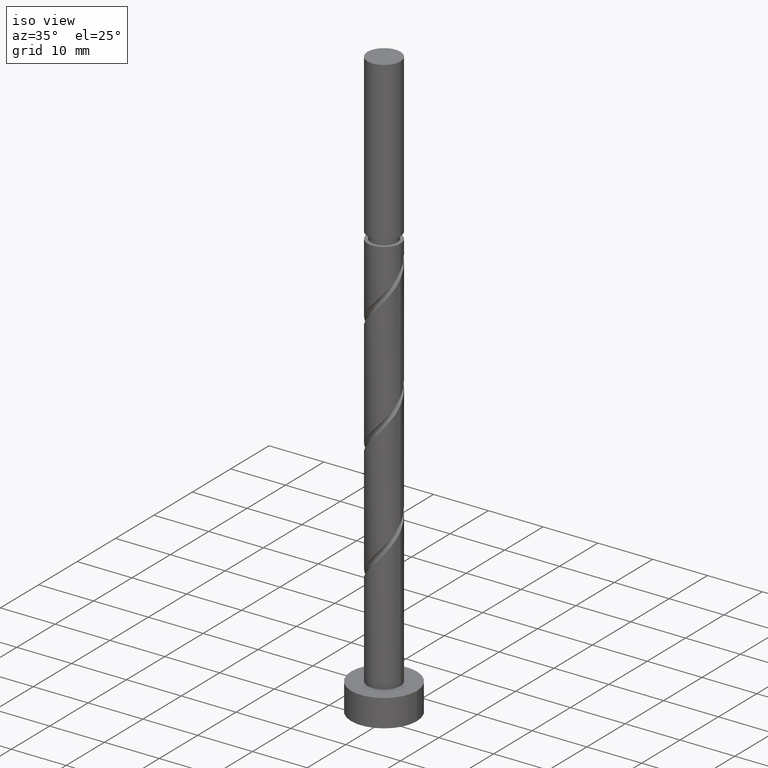
[diagram: clean part render]
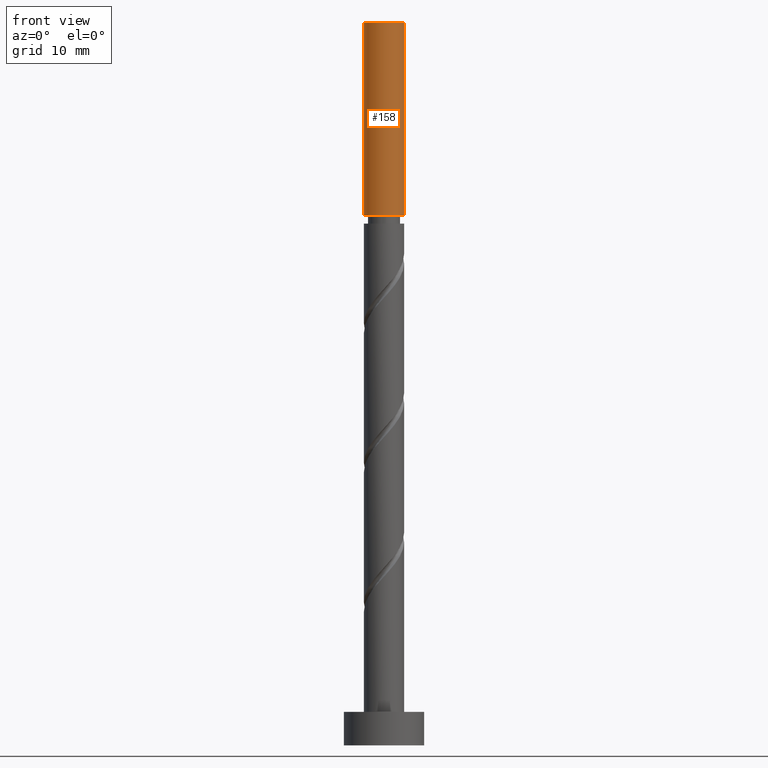
[diagram: tour spotlight — one face highlighted and labeled with its STEP entity id]
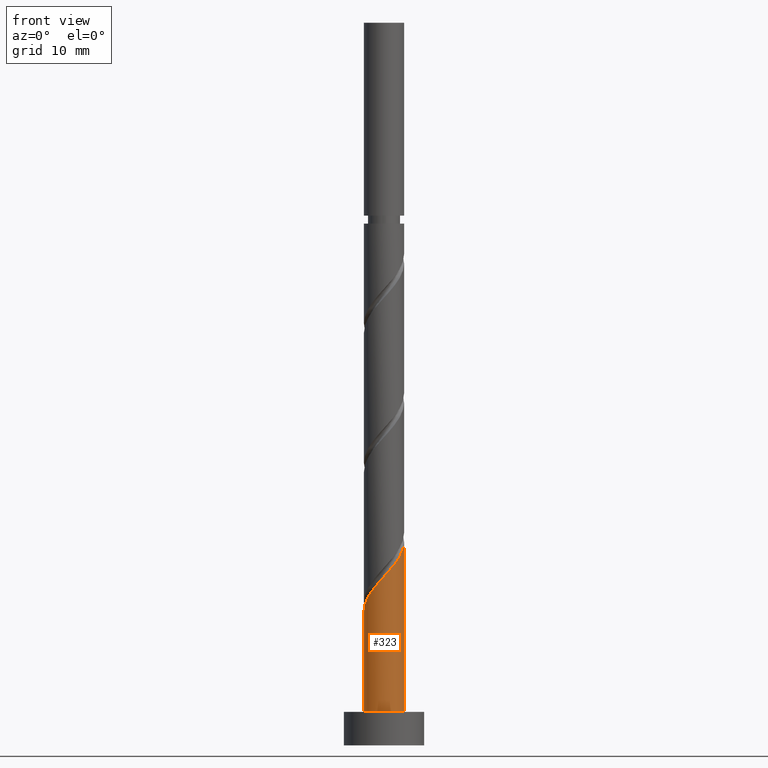
[diagram: tour spotlight — one face highlighted and labeled with its STEP entity id]
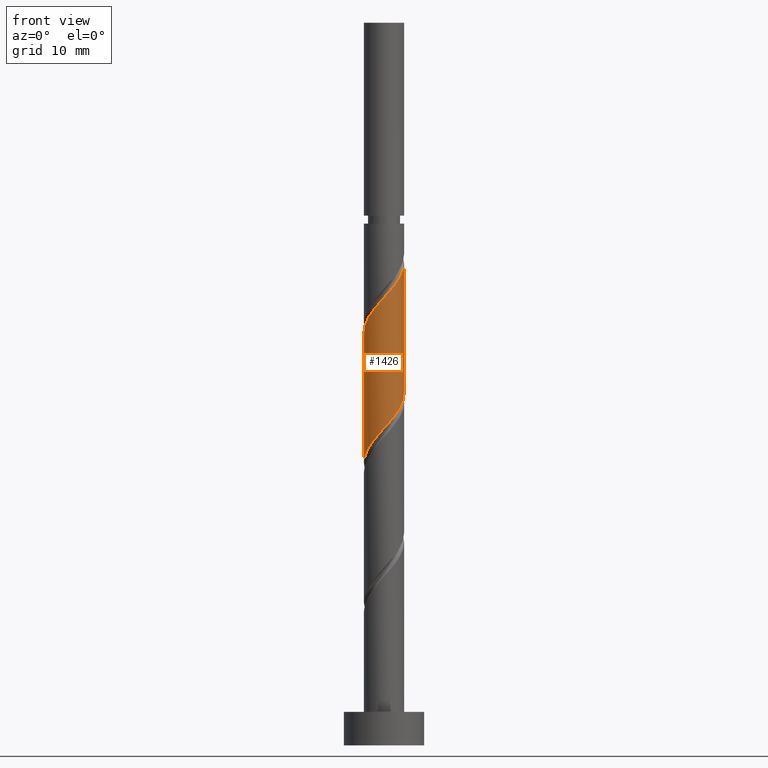
[diagram: tour spotlight — one face highlighted and labeled with its STEP entity id]
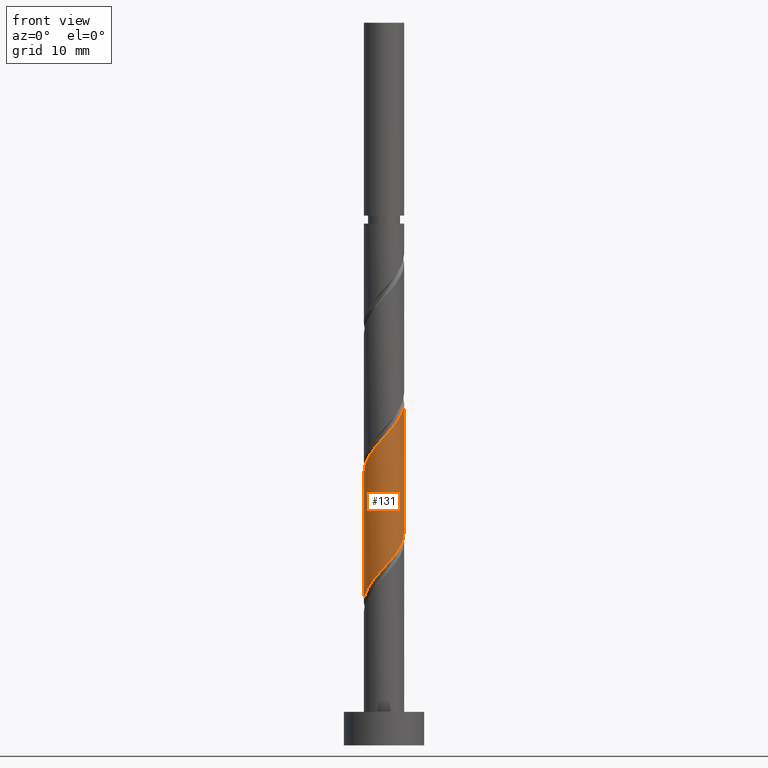
[diagram: tour spotlight — one face highlighted and labeled with its STEP entity id]
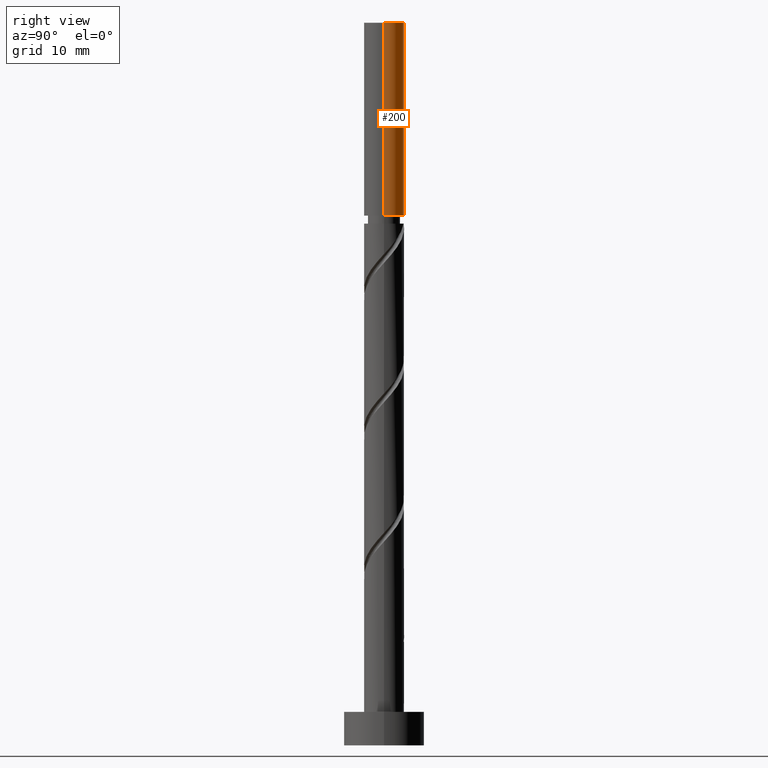
[diagram: tour spotlight — one face highlighted and labeled with its STEP entity id]
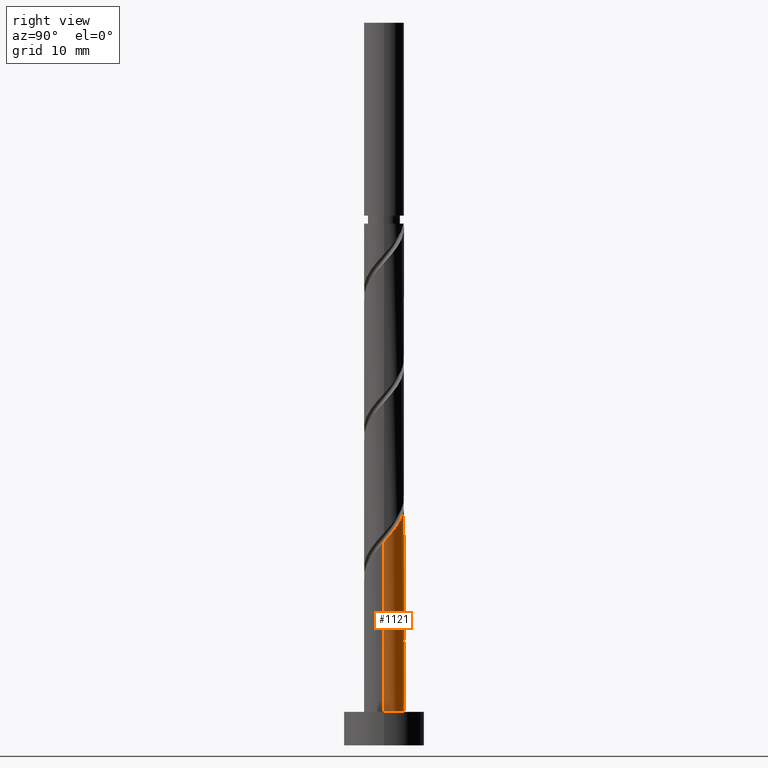
[diagram: tour spotlight — one face highlighted and labeled with its STEP entity id]
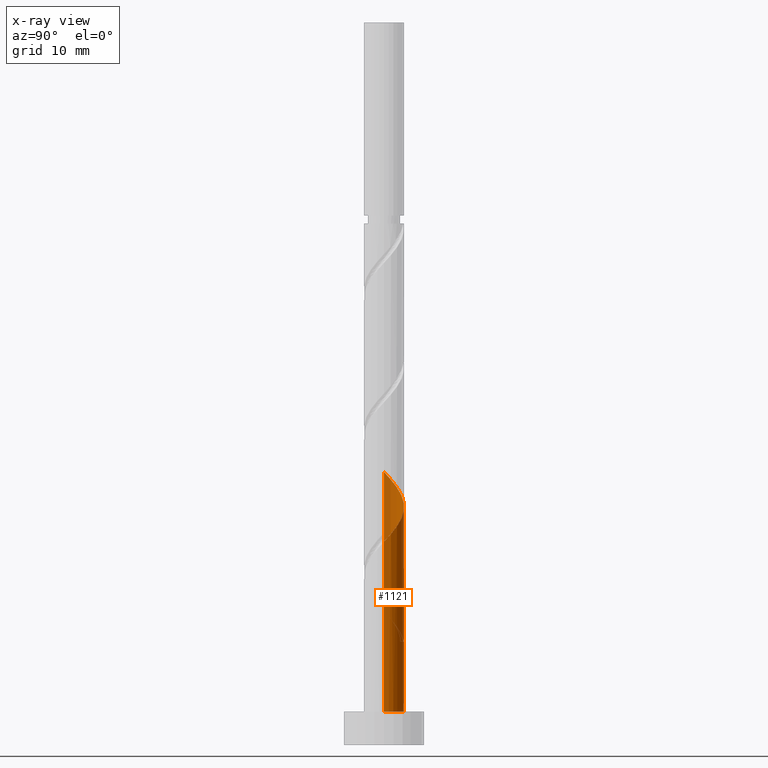
[diagram: x-ray of the same camera — body ghosted, this tour face saturated]
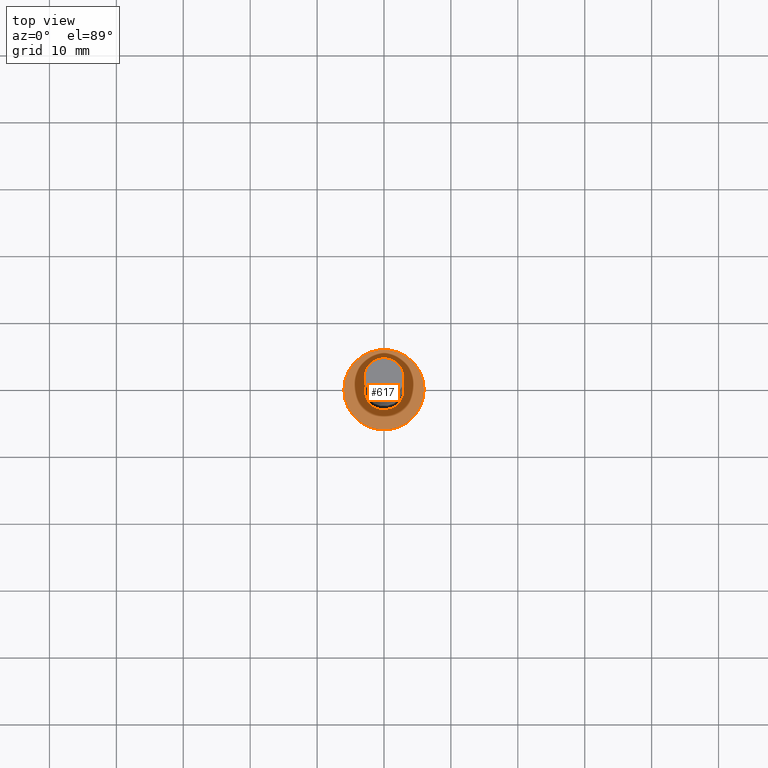
[diagram: tour spotlight — one face highlighted and labeled with its STEP entity id]
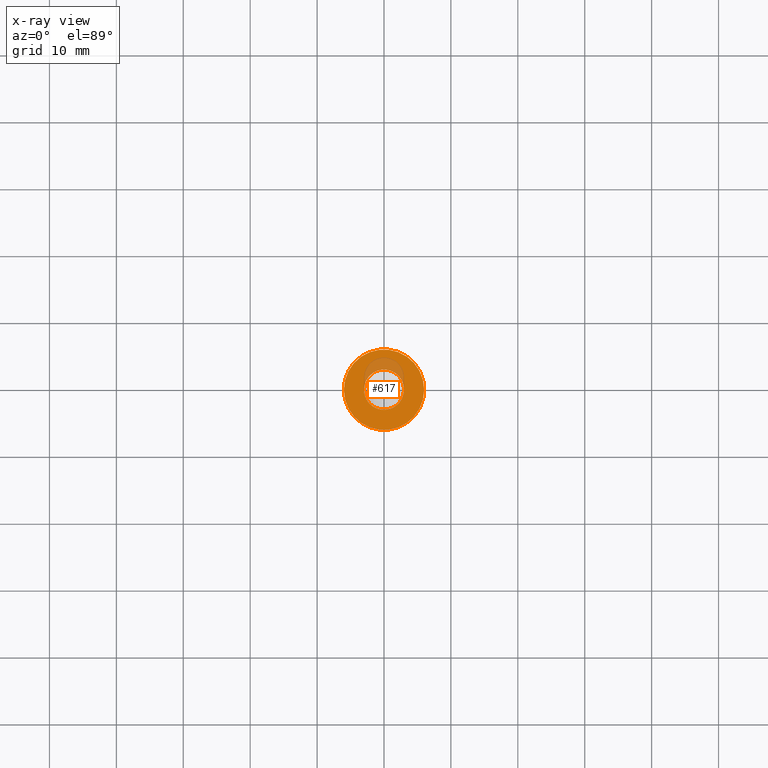
[diagram: x-ray of the same camera — body ghosted, this tour face saturated]
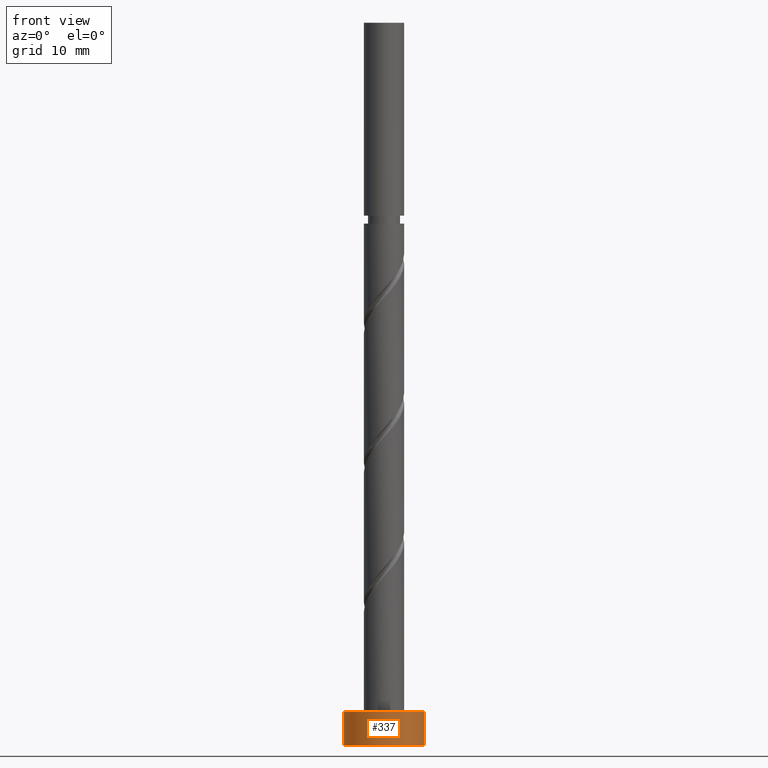
[diagram: tour spotlight — one face highlighted and labeled with its STEP entity id]
A machine part: a face-by-face anatomy tour. The part has 21 B-rep faces; the first image is the clean iso view, then the 8 largest visible faces are spotlighted one at a time (largest first), each with its STEP entity span.

Face 1 — front view, entity #158. In plain terms, the highlighted cylindrical surface (edge-blend (fillet) strip) has radius 3 mm, axis along (-0, -0, -1).
Definition (entity closure, byte-faithful):
#38 = DIRECTION ( 'NONE',  ( -0.000000000000000000, -0.000000000000000000, -1.000000000000000000 ) ) ;
#52 = CARTESIAN_POINT ( 'NONE',  ( 0.000000000000000000, 0.000000000000000000, 79.17256328937250487 ) ) ;
#77 = CARTESIAN_POINT ( 'NONE',  ( -3.000000000000003109, 0.000000000000000000, 79.17256328937250487 ) ) ;
#109 = EDGE_CURVE ( 'NONE', #1378, #461, #639, .T. ) ;
#134 = CARTESIAN_POINT ( 'NONE',  ( 3.000000000000003109, 3.673940397442063319E-16, 79.17256328937250487 ) ) ;
#136 = EDGE_LOOP ( 'NONE', ( #750, #1487, #1570, #478 ) ) ;
#158 = ADVANCED_FACE ( 'NONE', ( #190 ), #1178, .T. ) ;
#190 = FACE_OUTER_BOUND ( 'NONE', #136, .T. ) ;
#336 = AXIS2_PLACEMENT_3D ( 'NONE', #1388, #768, #1253 ) ;
#363 = CARTESIAN_POINT ( 'NONE',  ( 3.000000000000000444, 3.673940397442060361E-16, 108.0000000000000000 ) ) ;
#420 = DIRECTION ( 'NONE',  ( -1.000000000000000000, 0.000000000000000000, 0.000000000000000000 ) ) ;
#461 = VERTEX_POINT ( 'NONE', #134 ) ;
#478 = ORIENTED_EDGE ( 'NONE', *, *, #578, .F. ) ;
#565 = EDGE_CURVE ( 'NONE', #1233, #1378, #931, .T. ) ;
#578 = EDGE_CURVE ( 'NONE', #461, #1255, #1369, .T. ) ;
#602 = VECTOR ( 'NONE', #771, 1000.000000000000000 ) ;
#639 = LINE ( 'NONE', #1030, #810 ) ;
#750 = ORIENTED_EDGE ( 'NONE', *, *, #109, .F. ) ;
#768 = DIRECTION ( 'NONE',  ( 0.000000000000000000, 0.000000000000000000, 1.000000000000000000 ) ) ;
#771 = DIRECTION ( 'NONE',  ( -0.000000000000000000, -0.000000000000000000, -1.000000000000000000 ) ) ;
#789 = DIRECTION ( 'NONE',  ( -0.000000000000000000, -0.000000000000000000, -1.000000000000000000 ) ) ;
#810 = VECTOR ( 'NONE', #38, 1000.000000000000000 ) ;
#905 = LINE ( 'NONE', #1386, #602 ) ;
#931 = CIRCLE ( 'NONE', #336, 3.000000000000000444 ) ;
#949 = DIRECTION ( 'NONE',  ( -1.000000000000000000, 0.000000000000000000, 0.000000000000000000 ) ) ;
#1030 = CARTESIAN_POINT ( 'NONE',  ( 3.000000000000000444, 3.673940397442060361E-16, 108.0000000000000000 ) ) ;
#1060 = AXIS2_PLACEMENT_3D ( 'NONE', #52, #789, #420 ) ;
#1063 = CARTESIAN_POINT ( 'NONE',  ( 0.000000000000000000, 0.000000000000000000, 108.0000000000000000 ) ) ;
#1146 = EDGE_CURVE ( 'NONE', #1233, #1255, #905, .T. ) ;
#1178 = CYLINDRICAL_SURFACE ( 'NONE', #1400, 3.000000000000000444 ) ;
#1208 = DIRECTION ( 'NONE',  ( -0.000000000000000000, -0.000000000000000000, -1.000000000000000000 ) ) ;
#1233 = VERTEX_POINT ( 'NONE', #1312 ) ;
#1253 = DIRECTION ( 'NONE',  ( 1.000000000000000000, 0.000000000000000000, 0.000000000000000000 ) ) ;
#1255 = VERTEX_POINT ( 'NONE', #77 ) ;
#1312 = CARTESIAN_POINT ( 'NONE',  ( -3.000000000000000444, 0.000000000000000000, 108.0000000000000000 ) ) ;
#1369 = CIRCLE ( 'NONE', #1060, 3.000000000000003109 ) ;
#1378 = VERTEX_POINT ( 'NONE', #363 ) ;
#1386 = CARTESIAN_POINT ( 'NONE',  ( -3.000000000000000444, 0.000000000000000000, 108.0000000000000000 ) ) ;
#1388 = CARTESIAN_POINT ( 'NONE',  ( 0.000000000000000000, 0.000000000000000000, 108.0000000000000000 ) ) ;
#1400 = AXIS2_PLACEMENT_3D ( 'NONE', #1063, #1208, #949 ) ;
#1487 = ORIENTED_EDGE ( 'NONE', *, *, #565, .F. ) ;
#1570 = ORIENTED_EDGE ( 'NONE', *, *, #1146, .T. ) ;

Face 2 — front view, entity #323. In plain terms, the highlighted cylindrical surface (edge-blend (fillet) strip) has radius 3 mm, axis along (-0, -0, -1).
Definition (entity closure, byte-faithful):
#19 = ORIENTED_EDGE ( 'NONE', *, *, #1438, .T. ) ;
#83 = CARTESIAN_POINT ( 'NONE',  ( 3.000000000000004441, 2.129020595215229578E-15, 30.43276084790224090 ) ) ;
#91 = CARTESIAN_POINT ( 'NONE',  ( 0.000000000000000000, 0.000000000000000000, 5.000000000000000000 ) ) ;
#110 = FACE_OUTER_BOUND ( 'NONE', #1449, .T. ) ;
#193 = CARTESIAN_POINT ( 'NONE',  ( -1.677408196705101107, -2.532207025513280918, 23.28506328937249137 ) ) ;
#217 = CARTESIAN_POINT ( 'NONE',  ( 1.889924352937062180, -2.377805000122529933, 27.45172995603916277 ) ) ;
#224 = DIRECTION ( 'NONE',  ( 0.000000000000000000, 0.000000000000000000, 1.000000000000000000 ) ) ;
#294 = CIRCLE ( 'NONE', #1077, 3.000000000000000444 ) ;
#323 = ADVANCED_FACE ( 'NONE', ( #110 ), #458, .T. ) ;
#351 = AXIS2_PLACEMENT_3D ( 'NONE', #1083, #681, #806 ) ;
#356 = CARTESIAN_POINT ( 'NONE',  ( 3.000000000000000444, 3.673940397442060361E-16, 108.0000000000000000 ) ) ;
#360 = DIRECTION ( 'NONE',  ( -0.000000000000000000, -0.000000000000000000, -1.000000000000000000 ) ) ;
#405 = EDGE_CURVE ( 'NONE', #1202, #1457, #294, .T. ) ;
#450 = CARTESIAN_POINT ( 'NONE',  ( -2.611625341554443924, -1.476283534877586012, 21.72256328937249492 ) ) ;
#458 = CYLINDRICAL_SURFACE ( 'NONE', #351, 3.000000000000000444 ) ;
#469 = CARTESIAN_POINT ( 'NONE',  ( 1.062642716818109401, -2.845445682986358804, 26.41006328937249492 ) ) ;
#475 = DIRECTION ( 'NONE',  ( 1.000000000000000000, 0.000000000000000000, 0.000000000000000000 ) ) ;
#558 = VECTOR ( 'NONE', #360, 1000.000000000000000 ) ;
#564 = CARTESIAN_POINT ( 'NONE',  ( -3.000000000000004441, -2.533834370361787387E-15, 20.01609418123556594 ) ) ;
#583 = CARTESIAN_POINT ( 'NONE',  ( 1.476283534877586012, -2.611625341554443924, 26.93089662270582707 ) ) ;
#681 = DIRECTION ( 'NONE',  ( -0.000000000000000000, -0.000000000000000000, -1.000000000000000000 ) ) ;
#683 = CARTESIAN_POINT ( 'NONE',  ( 2.980586974261068001, -0.3407363920471078167, 30.05589662270583062 ) ) ;
#691 = CARTESIAN_POINT ( 'NONE',  ( 2.729413328510883474, -1.245111594254576071, 29.01422995603915567 ) ) ;
#743 = VERTEX_POINT ( 'NONE', #1444 ) ;
#755 = LINE ( 'NONE', #356, #895 ) ;
#802 = CARTESIAN_POINT ( 'NONE',  ( -0.3407363920471075391, -2.980586974261068001, 24.84756328937249492 ) ) ;
#806 = DIRECTION ( 'NONE',  ( -1.000000000000000000, 0.000000000000000000, 0.000000000000000000 ) ) ;
#808 = CARTESIAN_POINT ( 'NONE',  ( 2.532207025513280918, -1.677408196705101773, 28.49339662270582707 ) ) ;
#828 = CARTESIAN_POINT ( 'NONE',  ( 0.5969924622639719569, -2.940000000000004388, 25.88922995603915211 ) ) ;
#837 = CARTESIAN_POINT ( 'NONE',  ( -2.027606598413815409, -2.211065689225171216, 22.76422995603915922 ) ) ;
#851 = DIRECTION ( 'NONE',  ( -0.000000000000000000, -0.000000000000000000, -1.000000000000000000 ) ) ;
#852 = ORIENTED_EDGE ( 'NONE', *, *, #405, .T. ) ;
#865 = CARTESIAN_POINT ( 'NONE',  ( 3.000000000000000444, 3.673940397442060361E-16, 5.000000000000000000 ) ) ;
#895 = VECTOR ( 'NONE', #851, 1000.000000000000000 ) ;
#928 = CARTESIAN_POINT ( 'NONE',  ( 3.000000000000004441, 2.129020595215229578E-15, 30.43276084790224090 ) ) ;
#1056 = CARTESIAN_POINT ( 'NONE',  ( -1.245111594254576071, -2.729413328510883474, 23.80589662270581996 ) ) ;
#1075 = CARTESIAN_POINT ( 'NONE',  ( -2.377805000122529933, -1.889924352937062402, 22.24339662270583418 ) ) ;
#1077 = AXIS2_PLACEMENT_3D ( 'NONE', #91, #224, #475 ) ;
#1083 = CARTESIAN_POINT ( 'NONE',  ( 0.000000000000000000, 0.000000000000000000, 108.0000000000000000 ) ) ;
#1111 = ORIENTED_EDGE ( 'NONE', *, *, #1407, .F. ) ;
#1118 = VERTEX_POINT ( 'NONE', #928 ) ;
#1160 = CARTESIAN_POINT ( 'NONE',  ( -3.000000000000000444, 0.000000000000000000, 5.000000000000000000 ) ) ;
#1173 = CARTESIAN_POINT ( 'NONE',  ( 2.926619631508485142, -0.8128149918040498134, 29.53506328937248782 ) ) ;
#1181 = CARTESIAN_POINT ( 'NONE',  ( -2.845445682986358804, -1.062642716818109401, 21.20172995603915922 ) ) ;
#1202 = VERTEX_POINT ( 'NONE', #1160 ) ;
#1210 = CARTESIAN_POINT ( 'NONE',  ( -0.8128149918040497024, -2.926619631508485142, 24.32672995603915922 ) ) ;
#1225 = ORIENTED_EDGE ( 'NONE', *, *, #1290, .F. ) ;
#1290 = EDGE_CURVE ( 'NONE', #743, #1118, #1538, .T. ) ;
#1295 = CARTESIAN_POINT ( 'NONE',  ( 0.1313422077098344298, -3.034554317013650859, 25.36839662270582352 ) ) ;
#1304 = CARTESIAN_POINT ( 'NONE',  ( -2.940000000000004388, -0.5969924622639721790, 20.68089662270581996 ) ) ;
#1320 = CARTESIAN_POINT ( 'NONE',  ( 2.211065689225171216, -2.027606598413815409, 27.97256328937249137 ) ) ;
#1407 = EDGE_CURVE ( 'NONE', #1118, #1457, #755, .T. ) ;
#1438 = EDGE_CURVE ( 'NONE', #743, #1202, #1574, .T. ) ;
#1444 = CARTESIAN_POINT ( 'NONE',  ( -3.000000000000004441, -2.533834370361787387E-15, 20.01609418123556594 ) ) ;
#1447 = CARTESIAN_POINT ( 'NONE',  ( -3.000000000000004885, -0.3015113445777645174, 20.35039875664340769 ) ) ;
#1449 = EDGE_LOOP ( 'NONE', ( #1111, #1225, #19, #852 ) ) ;
#1457 = VERTEX_POINT ( 'NONE', #865 ) ;
#1463 = CARTESIAN_POINT ( 'NONE',  ( -3.000000000000000444, 0.000000000000000000, 108.0000000000000000 ) ) ;
#1538 =( BOUNDED_CURVE ( )  B_SPLINE_CURVE ( 2, ( #564, #1447, #1304, #1181, #450, #1075, #837, #193, #1056, #1210, #802, #1295, #828, #469, #583, #217, #1320, #808, #691, #1173, #683, #1542, #83 ),
 .UNSPECIFIED., .F., .T. ) 
 B_SPLINE_CURVE_WITH_KNOTS ( ( 3, 2, 2, 2, 2, 2, 2, 2, 2, 2, 2, 3 ),
 ( 0.05453220231385523531, 0.06250000000000000000, 0.07499999999999995559, 0.08750000000000002220, 0.09999999999999997780, 0.1125000000000000444, 0.1250000000000000000, 0.1374999999999999556, 0.1500000000000000222, 0.1624999999999999778, 0.1750000000000000444, 0.1795322023138552214 ),
 .UNSPECIFIED. ) 
 CURVE ( )  GEOMETRIC_REPRESENTATION_ITEM ( )  RATIONAL_B_SPLINE_CURVE ( ( 0.9039174447099327381, 0.9019565955404622581, 0.9090909090909106149, 0.8978984914501266790, 0.9090909090909106149, 0.8978984914501266790, 0.9090909090909106149, 0.8978984914501266790, 0.9090909090909106149, 0.8978984914501266790, 0.9090909090909106149, 0.8978984914501266790, 0.9090909090909106149, 0.8978984914501266790, 0.9090909090909106149, 0.8978984914501266790, 0.9090909090909106149, 0.8978984914501266790, 0.9090909090909106149, 0.8978984914501266790, 0.9090909090909106149, 0.9050328050005750358, 0.9039174447099328491 ) ) 
 REPRESENTATION_ITEM ( '' )  );
#1542 = CARTESIAN_POINT ( 'NONE',  ( 3.000000000000004441, -0.1709212123392994109, 30.24324975869495447 ) ) ;
#1574 = LINE ( 'NONE', #1463, #558 ) ;

Face 3 — front view, entity #1426. In plain terms, the highlighted cylindrical surface (edge-blend (fillet) strip) has radius 3 mm, axis along (-0, -0, -1).
Definition (entity closure, byte-faithful):
#63 = ORIENTED_EDGE ( 'NONE', *, *, #1027, .T. ) ;
#70 = CARTESIAN_POINT ( 'NONE',  ( -2.729413328510879033, -1.245111594254573184, 43.59756328937248071 ) ) ;
#87 = CARTESIAN_POINT ( 'NONE',  ( 1.677408196705098442, -2.532207025513278253, 49.32672995603918054 ) ) ;
#99 = CARTESIAN_POINT ( 'NONE',  ( -3.000000000000000000, 3.373448126221336110E-15, 42.17903239750943101 ) ) ;
#102 = CARTESIAN_POINT ( 'NONE',  ( 2.532207025513280918, -1.677408196705101773, 70.16006328937250203 ) ) ;
#112 = CARTESIAN_POINT ( 'NONE',  ( -2.845445682986358804, -1.062642716818109401, 62.86839662270582352 ) ) ;
#148 = CARTESIAN_POINT ( 'NONE',  ( 0.3407363920471058738, -2.980586974261063116, 47.76422995603915922 ) ) ;
#152 = ORIENTED_EDGE ( 'NONE', *, *, #283, .F. ) ;
#167 = CARTESIAN_POINT ( 'NONE',  ( -3.000000000000000000, 3.373448126221336110E-15, 42.17903239750943101 ) ) ;
#197 = AXIS2_PLACEMENT_3D ( 'NONE', #884, #528, #280 ) ;
#227 = CARTESIAN_POINT ( 'NONE',  ( 2.926619631508485142, -0.8128149918040498134, 71.20172995603917343 ) ) ;
#230 = CARTESIAN_POINT ( 'NONE',  ( 3.000000000000000000, -3.703296387451867164E-15, 52.59569906417608109 ) ) ;
#238 = CARTESIAN_POINT ( 'NONE',  ( 2.377805000122526824, -1.889924352937060847, 50.36839662270583773 ) ) ;
#280 = DIRECTION ( 'NONE',  ( -1.000000000000000000, 0.000000000000000000, 0.000000000000000000 ) ) ;
#283 = EDGE_CURVE ( 'NONE', #860, #1553, #1054, .T. ) ;
#315 = CARTESIAN_POINT ( 'NONE',  ( 3.000000000000000444, 3.673940397442060361E-16, 108.0000000000000000 ) ) ;
#318 = ORIENTED_EDGE ( 'NONE', *, *, #1112, .F. ) ;
#326 = CARTESIAN_POINT ( 'NONE',  ( -1.245111594254576071, -2.729413328510883474, 65.47256328937250203 ) ) ;
#334 = CARTESIAN_POINT ( 'NONE',  ( 1.889924352937062180, -2.377805000122529933, 69.11839662270583062 ) ) ;
#345 = CARTESIAN_POINT ( 'NONE',  ( -2.377805000122529933, -1.889924352937062402, 63.91006328937246650 ) ) ;
#364 = EDGE_LOOP ( 'NONE', ( #152, #1467, #63, #318 ) ) ;
#365 = CARTESIAN_POINT ( 'NONE',  ( -1.476283534877585124, -2.611625341554439483, 45.68089662270583062 ) ) ;
#433 = CARTESIAN_POINT ( 'NONE',  ( -1.889924352937060847, -2.377805000122526824, 45.16006328937250203 ) ) ;
#519 = CARTESIAN_POINT ( 'NONE',  ( -0.1313422077098356233, -3.034554317013646862, 47.24339662270581641 ) ) ;
#528 = DIRECTION ( 'NONE',  ( -0.000000000000000000, -0.000000000000000000, -1.000000000000000000 ) ) ;
#543 = VECTOR ( 'NONE', #831, 1000.000000000000000 ) ;
#552 =( BOUNDED_CURVE ( )  B_SPLINE_CURVE ( 2, ( #935, #1419, #573, #112, #1065, #345, #1429, #943, #326, #820, #1331, #699, #1552, #951, #1439, #334, #1201, #102, #592, #227, #1085, #1561, #718 ),
 .UNSPECIFIED., .F., .T. ) 
 B_SPLINE_CURVE_WITH_KNOTS ( ( 3, 2, 2, 2, 2, 2, 2, 2, 2, 2, 2, 3 ),
 ( 0.5545322023138553602, 0.5625000000000000000, 0.5749999999999999556, 0.5875000000000000222, 0.5999999999999999778, 0.6125000000000000444, 0.6250000000000000000, 0.6374999999999999556, 0.6500000000000000222, 0.6624999999999999778, 0.6750000000000000444, 0.6795322023138553602 ),
 .UNSPECIFIED. ) 
 CURVE ( )  GEOMETRIC_REPRESENTATION_ITEM ( )  RATIONAL_B_SPLINE_CURVE ( ( 0.9039174447099328491, 0.9019565955404623692, 0.9090909090909106149, 0.8978984914501266790, 0.9090909090909106149, 0.8978984914501266790, 0.9090909090909106149, 0.8978984914501266790, 0.9090909090909106149, 0.8978984914501266790, 0.9090909090909106149, 0.8978984914501266790, 0.9090909090909106149, 0.8978984914501266790, 0.9090909090909106149, 0.8978984914501266790, 0.9090909090909106149, 0.8978984914501266790, 0.9090909090909106149, 0.8978984914501266790, 0.9090909090909106149, 0.9050328050005749247, 0.9039174447099328491 ) ) 
 REPRESENTATION_ITEM ( '' )  );
#566 = CARTESIAN_POINT ( 'NONE',  ( 2.027606598413811856, -2.211065689225169439, 49.84756328937248782 ) ) ;
#573 = CARTESIAN_POINT ( 'NONE',  ( -2.940000000000004388, -0.5969924622639721790, 62.34756328937248071 ) ) ;
#576 = CARTESIAN_POINT ( 'NONE',  ( 1.245111594254573184, -2.729413328510879033, 48.80589662270582352 ) ) ;
#592 = CARTESIAN_POINT ( 'NONE',  ( 2.729413328510883474, -1.245111594254576071, 70.68089662270580220 ) ) ;
#594 = CARTESIAN_POINT ( 'NONE',  ( -3.000000000000000444, 0.000000000000000000, 108.0000000000000000 ) ) ;
#641 = CARTESIAN_POINT ( 'NONE',  ( 3.000000000000000000, -3.703296387451867164E-15, 52.59569906417608109 ) ) ;
#666 = CARTESIAN_POINT ( 'NONE',  ( -2.926619631508482477, -0.8128149918040481481, 43.07672995603917343 ) ) ;
#699 = CARTESIAN_POINT ( 'NONE',  ( 0.1313422077098344298, -3.034554317013650859, 67.03506328937248782 ) ) ;
#710 = CARTESIAN_POINT ( 'NONE',  ( 3.000000000000000444, -0.3015113445777657386, 52.26139448876826776 ) ) ;
#718 = CARTESIAN_POINT ( 'NONE',  ( 3.000000000000004885, 5.847310085450277599E-16, 72.09942751456891585 ) ) ;
#793 = CARTESIAN_POINT ( 'NONE',  ( -2.980586974261063116, -0.3407363920471060958, 42.55589662270583062 ) ) ;
#820 = CARTESIAN_POINT ( 'NONE',  ( -0.8128149918040497024, -2.926619631508485142, 65.99339662270584483 ) ) ;
#831 = DIRECTION ( 'NONE',  ( -0.000000000000000000, -0.000000000000000000, -1.000000000000000000 ) ) ;
#847 = CARTESIAN_POINT ( 'NONE',  ( 2.845445682986354363, -1.062642716818109401, 51.41006328937249492 ) ) ;
#860 = VERTEX_POINT ( 'NONE', #1554 ) ;
#880 = CARTESIAN_POINT ( 'NONE',  ( 0.8128149918040478150, -2.926619631508482477, 48.28506328937251624 ) ) ;
#884 = CARTESIAN_POINT ( 'NONE',  ( 0.000000000000000000, 0.000000000000000000, 108.0000000000000000 ) ) ;
#888 = CARTESIAN_POINT ( 'NONE',  ( -1.062642716818109179, -2.845445682986354363, 46.20172995603915922 ) ) ;
#918 = CYLINDRICAL_SURFACE ( 'NONE', #197, 3.000000000000000444 ) ;
#921 = CARTESIAN_POINT ( 'NONE',  ( -3.000000000000000444, -0.1709212123392969129, 42.36854348671670323 ) ) ;
#935 = CARTESIAN_POINT ( 'NONE',  ( -3.000000000000004885, -9.895447836915852730E-16, 61.68276084790223024 ) ) ;
#943 = CARTESIAN_POINT ( 'NONE',  ( -1.677408196705101107, -2.532207025513280918, 64.95172995603915922 ) ) ;
#944 = VERTEX_POINT ( 'NONE', #1218 ) ;
#951 = CARTESIAN_POINT ( 'NONE',  ( 1.062642716818109401, -2.845445682986358804, 68.07672995603917343 ) ) ;
#997 =( BOUNDED_CURVE ( )  B_SPLINE_CURVE ( 2, ( #230, #710, #1203, #847, #1340, #238, #566, #87, #576, #880, #148, #519, #1494, #888, #365, #433, #1033, #1287, #70, #666, #793, #921, #167 ),
 .UNSPECIFIED., .F., .T. ) 
 B_SPLINE_CURVE_WITH_KNOTS ( ( 3, 2, 2, 2, 2, 2, 2, 2, 2, 2, 2, 3 ),
 ( 0.5545322023138552492, 0.5625000000000000000, 0.5749999999999999556, 0.5875000000000000222, 0.5999999999999999778, 0.6125000000000000444, 0.6250000000000000000, 0.6374999999999999556, 0.6500000000000000222, 0.6624999999999999778, 0.6750000000000000444, 0.6795322023138552492 ),
 .UNSPECIFIED. ) 
 CURVE ( )  GEOMETRIC_REPRESENTATION_ITEM ( )  RATIONAL_B_SPLINE_CURVE ( ( 0.9039174447099269649, 0.9019565955404564850, 0.9090909090909048418, 0.8978984914501209058, 0.9090909090909048418, 0.8978984914501209058, 0.9090909090909048418, 0.8978984914501209058, 0.9090909090909048418, 0.8978984914501209058, 0.9090909090909048418, 0.8978984914501209058, 0.9090909090909048418, 0.8978984914501209058, 0.9090909090909048418, 0.8978984914501209058, 0.9090909090909048418, 0.8978984914501209058, 0.9090909090909048418, 0.8978984914501209058, 0.9090909090909048418, 0.9050328050005691516, 0.9039174447099269649 ) ) 
 REPRESENTATION_ITEM ( '' )  );
#1027 = EDGE_CURVE ( 'NONE', #944, #1521, #1459, .T. ) ;
#1033 = CARTESIAN_POINT ( 'NONE',  ( -2.211065689225169439, -2.027606598413811856, 44.63922995603915211 ) ) ;
#1054 = LINE ( 'NONE', #315, #1330 ) ;
#1065 = CARTESIAN_POINT ( 'NONE',  ( -2.611625341554443924, -1.476283534877586012, 63.38922995603915922 ) ) ;
#1085 = CARTESIAN_POINT ( 'NONE',  ( 2.980586974261068001, -0.3407363920471078167, 71.72256328937247360 ) ) ;
#1112 = EDGE_CURVE ( 'NONE', #1553, #1521, #997, .T. ) ;
#1189 = DIRECTION ( 'NONE',  ( -0.000000000000000000, -0.000000000000000000, -1.000000000000000000 ) ) ;
#1201 = CARTESIAN_POINT ( 'NONE',  ( 2.211065689225171216, -2.027606598413815409, 69.63922995603914501 ) ) ;
#1203 = CARTESIAN_POINT ( 'NONE',  ( 2.940000000000000835, -0.5969924622639726230, 51.93089662270581641 ) ) ;
#1218 = CARTESIAN_POINT ( 'NONE',  ( -3.000000000000004885, -9.895447836915852730E-16, 61.68276084790223024 ) ) ;
#1287 = CARTESIAN_POINT ( 'NONE',  ( -2.532207025513277809, -1.677408196705098442, 44.11839662270584483 ) ) ;
#1322 = EDGE_CURVE ( 'NONE', #944, #860, #552, .T. ) ;
#1330 = VECTOR ( 'NONE', #1189, 1000.000000000000000 ) ;
#1331 = CARTESIAN_POINT ( 'NONE',  ( -0.3407363920471075391, -2.980586974261068001, 66.51422995603914501 ) ) ;
#1340 = CARTESIAN_POINT ( 'NONE',  ( 2.611625341554439483, -1.476283534877585346, 50.88922995603914501 ) ) ;
#1362 = FACE_OUTER_BOUND ( 'NONE', #364, .T. ) ;
#1419 = CARTESIAN_POINT ( 'NONE',  ( -3.000000000000003109, -0.3015113445777691248, 62.01706542331007910 ) ) ;
#1426 = ADVANCED_FACE ( 'NONE', ( #1362 ), #918, .T. ) ;
#1429 = CARTESIAN_POINT ( 'NONE',  ( -2.027606598413815409, -2.211065689225171216, 64.43089662270581641 ) ) ;
#1439 = CARTESIAN_POINT ( 'NONE',  ( 1.476283534877586012, -2.611625341554443924, 68.59756328937248782 ) ) ;
#1459 = LINE ( 'NONE', #594, #543 ) ;
#1467 = ORIENTED_EDGE ( 'NONE', *, *, #1322, .F. ) ;
#1494 = CARTESIAN_POINT ( 'NONE',  ( -0.5969924622639722900, -2.940000000000000835, 46.72256328937248782 ) ) ;
#1521 = VERTEX_POINT ( 'NONE', #99 ) ;
#1552 = CARTESIAN_POINT ( 'NONE',  ( 0.5969924622639719569, -2.940000000000004388, 67.55589662270581641 ) ) ;
#1553 = VERTEX_POINT ( 'NONE', #641 ) ;
#1554 = CARTESIAN_POINT ( 'NONE',  ( 3.000000000000004885, 5.847310085450277599E-16, 72.09942751456891585 ) ) ;
#1561 = CARTESIAN_POINT ( 'NONE',  ( 3.000000000000005773, -0.1709212123392942206, 71.90991642536162942 ) ) ;

Face 4 — front view, entity #131. In plain terms, the highlighted cylindrical surface (edge-blend (fillet) strip) has radius 3 mm, axis along (-0, -0, -1).
Definition (entity closure, byte-faithful):
#10 = CARTESIAN_POINT ( 'NONE',  ( -2.980586974261063116, -0.3407363920471060958, 21.72256328937249137 ) ) ;
#23 = CARTESIAN_POINT ( 'NONE',  ( 2.940000000000000835, -0.5969924622639726230, 31.09756328937249492 ) ) ;
#45 = CARTESIAN_POINT ( 'NONE',  ( 2.980586974261068001, -0.3407363920471078167, 50.88922995603914501 ) ) ;
#54 = CARTESIAN_POINT ( 'NONE',  ( -1.677408196705101107, -2.532207025513280918, 44.11839662270582352 ) ) ;
#60 = CARTESIAN_POINT ( 'NONE',  ( -2.377805000122529933, -1.889924352937062402, 43.07672995603915211 ) ) ;
#67 = CARTESIAN_POINT ( 'NONE',  ( -2.027606598413815409, -2.211065689225171216, 43.59756328937248782 ) ) ;
#86 = EDGE_CURVE ( 'NONE', #762, #1045, #1433, .T. ) ;
#126 = CARTESIAN_POINT ( 'NONE',  ( -0.5969924622639722900, -2.940000000000000835, 25.88922995603915567 ) ) ;
#131 = ADVANCED_FACE ( 'NONE', ( #1396 ), #423, .T. ) ;
#150 = CARTESIAN_POINT ( 'NONE',  ( -2.532207025513277809, -1.677408196705098442, 23.28506328937250203 ) ) ;
#203 = CARTESIAN_POINT ( 'NONE',  ( -3.000000000000000444, 0.000000000000000000, 108.0000000000000000 ) ) ;
#206 = DIRECTION ( 'NONE',  ( -0.000000000000000000, -0.000000000000000000, -1.000000000000000000 ) ) ;
#211 = DIRECTION ( 'NONE',  ( -0.000000000000000000, -0.000000000000000000, -1.000000000000000000 ) ) ;
#218 = EDGE_LOOP ( 'NONE', ( #676, #255, #1125, #821 ) ) ;
#236 =( BOUNDED_CURVE ( )  B_SPLINE_CURVE ( 2, ( #248, #497, #23, #724, #975, #983, #747, #876, #605, #741, #732, #1222, #126, #1230, #998, #1484, #990, #150, #1476, #1367, #10, #753, #612 ),
 .UNSPECIFIED., .F., .T. ) 
 B_SPLINE_CURVE_WITH_KNOTS ( ( 3, 2, 2, 2, 2, 2, 2, 2, 2, 2, 2, 3 ),
 ( 0.8045322023138552492, 0.8125000000000000000, 0.8249999999999999556, 0.8375000000000000222, 0.8499999999999999778, 0.8625000000000000444, 0.8750000000000000000, 0.8874999999999999556, 0.9000000000000000222, 0.9124999999999999778, 0.9250000000000000444, 0.9295322023138552492 ),
 .UNSPECIFIED. ) 
 CURVE ( )  GEOMETRIC_REPRESENTATION_ITEM ( )  RATIONAL_B_SPLINE_CURVE ( ( 0.9039174447099269649, 0.9019565955404564850, 0.9090909090909048418, 0.8978984914501209058, 0.9090909090909048418, 0.8978984914501209058, 0.9090909090909048418, 0.8978984914501209058, 0.9090909090909048418, 0.8978984914501209058, 0.9090909090909048418, 0.8978984914501209058, 0.9090909090909048418, 0.8978984914501209058, 0.9090909090909048418, 0.8978984914501209058, 0.9090909090909048418, 0.8978984914501209058, 0.9090909090909048418, 0.8978984914501209058, 0.9090909090909048418, 0.9050328050005691516, 0.9039174447099269649 ) ) 
 REPRESENTATION_ITEM ( '' )  );
#248 = CARTESIAN_POINT ( 'NONE',  ( 3.000000000000000000, -3.703296387451867164E-15, 31.76236573084275605 ) ) ;
#255 = ORIENTED_EDGE ( 'NONE', *, *, #86, .F. ) ;
#275 = CARTESIAN_POINT ( 'NONE',  ( 0.5969924622639719569, -2.940000000000004388, 46.72256328937248782 ) ) ;
#307 = VECTOR ( 'NONE', #211, 1000.000000000000000 ) ;
#341 = CARTESIAN_POINT ( 'NONE',  ( -3.000000000000004441, -2.533834370361787387E-15, 40.84942751456890164 ) ) ;
#376 = AXIS2_PLACEMENT_3D ( 'NONE', #919, #523, #893 ) ;
#423 = CYLINDRICAL_SURFACE ( 'NONE', #376, 3.000000000000000444 ) ;
#431 = CARTESIAN_POINT ( 'NONE',  ( -2.611625341554443924, -1.476283534877586012, 42.55589662270583062 ) ) ;
#457 = EDGE_CURVE ( 'NONE', #885, #952, #236, .T. ) ;
#497 = CARTESIAN_POINT ( 'NONE',  ( 3.000000000000000444, -0.3015113445777657386, 31.42806115543491430 ) ) ;
#523 = DIRECTION ( 'NONE',  ( -0.000000000000000000, -0.000000000000000000, -1.000000000000000000 ) ) ;
#537 = CARTESIAN_POINT ( 'NONE',  ( 2.532207025513280918, -1.677408196705101773, 49.32672995603916632 ) ) ;
#546 = CARTESIAN_POINT ( 'NONE',  ( 1.476283534877586012, -2.611625341554443924, 47.76422995603915922 ) ) ;
#570 = VECTOR ( 'NONE', #206, 1000.000000000000000 ) ;
#605 = CARTESIAN_POINT ( 'NONE',  ( 1.245111594254573184, -2.729413328510879033, 27.97256328937248782 ) ) ;
#612 = CARTESIAN_POINT ( 'NONE',  ( -3.000000000000000000, 3.373448126221336110E-15, 21.34569906417608465 ) ) ;
#672 = CARTESIAN_POINT ( 'NONE',  ( -2.845445682986358804, -1.062642716818109401, 42.03506328937249492 ) ) ;
#676 = ORIENTED_EDGE ( 'NONE', *, *, #744, .F. ) ;
#724 = CARTESIAN_POINT ( 'NONE',  ( 2.845445682986354363, -1.062642716818109401, 30.57672995603916632 ) ) ;
#732 = CARTESIAN_POINT ( 'NONE',  ( 0.3407363920471058738, -2.980586974261063116, 26.93089662270582352 ) ) ;
#741 = CARTESIAN_POINT ( 'NONE',  ( 0.8128149918040478150, -2.926619631508482477, 27.45172995603916632 ) ) ;
#744 = EDGE_CURVE ( 'NONE', #1045, #885, #1540, .T. ) ;
#747 = CARTESIAN_POINT ( 'NONE',  ( 2.027606598413811856, -2.211065689225169439, 29.01422995603915567 ) ) ;
#753 = CARTESIAN_POINT ( 'NONE',  ( -3.000000000000000444, -0.1709212123392969129, 21.53521015338336397 ) ) ;
#762 = VERTEX_POINT ( 'NONE', #341 ) ;
#776 = CARTESIAN_POINT ( 'NONE',  ( 1.062642716818109401, -2.845445682986358804, 47.24339662270582352 ) ) ;
#800 = CARTESIAN_POINT ( 'NONE',  ( 3.000000000000005329, -0.1709212123392983840, 51.07658309202827951 ) ) ;
#821 = ORIENTED_EDGE ( 'NONE', *, *, #457, .F. ) ;
#876 = CARTESIAN_POINT ( 'NONE',  ( 1.677408196705098442, -2.532207025513278253, 28.49339662270583418 ) ) ;
#885 = VERTEX_POINT ( 'NONE', #1333 ) ;
#893 = DIRECTION ( 'NONE',  ( -1.000000000000000000, 0.000000000000000000, 0.000000000000000000 ) ) ;
#910 = CARTESIAN_POINT ( 'NONE',  ( -2.940000000000004388, -0.5969924622639721790, 41.51422995603915922 ) ) ;
#919 = CARTESIAN_POINT ( 'NONE',  ( 0.000000000000000000, 0.000000000000000000, 108.0000000000000000 ) ) ;
#925 = CARTESIAN_POINT ( 'NONE',  ( 1.889924352937062180, -2.377805000122529933, 48.28506328937248782 ) ) ;
#945 = LINE ( 'NONE', #203, #307 ) ;
#952 = VERTEX_POINT ( 'NONE', #1314 ) ;
#975 = CARTESIAN_POINT ( 'NONE',  ( 2.611625341554439483, -1.476283534877585346, 30.05589662270582707 ) ) ;
#983 = CARTESIAN_POINT ( 'NONE',  ( 2.377805000122526824, -1.889924352937060847, 29.53506328937249492 ) ) ;
#990 = CARTESIAN_POINT ( 'NONE',  ( -2.211065689225169439, -2.027606598413811856, 23.80589662270581996 ) ) ;
#998 = CARTESIAN_POINT ( 'NONE',  ( -1.476283534877585124, -2.611625341554439483, 24.84756328937249137 ) ) ;
#1014 = CARTESIAN_POINT ( 'NONE',  ( 2.211065689225171216, -2.027606598413815409, 48.80589662270583773 ) ) ;
#1039 = CARTESIAN_POINT ( 'NONE',  ( -0.3407363920471075391, -2.980586974261068001, 45.68089662270581641 ) ) ;
#1045 = VERTEX_POINT ( 'NONE', #1067 ) ;
#1067 = CARTESIAN_POINT ( 'NONE',  ( 3.000000000000004441, 2.129020595215229578E-15, 51.26609418123555173 ) ) ;
#1082 = EDGE_CURVE ( 'NONE', #762, #952, #945, .T. ) ;
#1125 = ORIENTED_EDGE ( 'NONE', *, *, #1082, .T. ) ;
#1138 = CARTESIAN_POINT ( 'NONE',  ( 0.1313422077098344298, -3.034554317013650859, 46.20172995603915211 ) ) ;
#1144 = CARTESIAN_POINT ( 'NONE',  ( 2.926619631508485142, -0.8128149918040498134, 50.36839662270583062 ) ) ;
#1150 = CARTESIAN_POINT ( 'NONE',  ( -1.245111594254576071, -2.729413328510883474, 44.63922995603915211 ) ) ;
#1157 = CARTESIAN_POINT ( 'NONE',  ( -3.000000000000004441, -2.533834370361787387E-15, 40.84942751456889454 ) ) ;
#1222 = CARTESIAN_POINT ( 'NONE',  ( -0.1313422077098356233, -3.034554317013646862, 26.41006328937249847 ) ) ;
#1230 = CARTESIAN_POINT ( 'NONE',  ( -1.062642716818109179, -2.845445682986354363, 25.36839662270583062 ) ) ;
#1262 = CARTESIAN_POINT ( 'NONE',  ( 2.729413328510883474, -1.245111594254576071, 49.84756328937250203 ) ) ;
#1314 = CARTESIAN_POINT ( 'NONE',  ( -3.000000000000000000, 3.373448126221336110E-15, 21.34569906417608820 ) ) ;
#1333 = CARTESIAN_POINT ( 'NONE',  ( 3.000000000000000000, -3.703296387451867164E-15, 31.76236573084275605 ) ) ;
#1367 = CARTESIAN_POINT ( 'NONE',  ( -2.926619631508482477, -0.8128149918040481481, 22.24339662270582707 ) ) ;
#1396 = FACE_OUTER_BOUND ( 'NONE', #218, .T. ) ;
#1411 = CARTESIAN_POINT ( 'NONE',  ( -3.000000000000003997, -0.3015113445777672374, 41.18373208997674340 ) ) ;
#1424 = CARTESIAN_POINT ( 'NONE',  ( 3.000000000000000444, 3.673940397442060361E-16, 108.0000000000000000 ) ) ;
#1433 =( BOUNDED_CURVE ( )  B_SPLINE_CURVE ( 2, ( #1157, #1411, #910, #672, #431, #60, #67, #54, #1150, #1509, #1039, #1138, #275, #776, #546, #925, #1014, #537, #1262, #1144, #45, #800, #1498 ),
 .UNSPECIFIED., .F., .T. ) 
 B_SPLINE_CURVE_WITH_KNOTS ( ( 3, 2, 2, 2, 2, 2, 2, 2, 2, 2, 2, 3 ),
 ( 0.3045322023138553047, 0.3125000000000000000, 0.3249999999999999556, 0.3375000000000000222, 0.3499999999999999778, 0.3625000000000000444, 0.3750000000000000000, 0.3874999999999999556, 0.4000000000000000222, 0.4124999999999999778, 0.4250000000000000444, 0.4295322023138552492 ),
 .UNSPECIFIED. ) 
 CURVE ( )  GEOMETRIC_REPRESENTATION_ITEM ( )  RATIONAL_B_SPLINE_CURVE ( ( 0.9039174447099327381, 0.9019565955404622581, 0.9090909090909106149, 0.8978984914501266790, 0.9090909090909106149, 0.8978984914501266790, 0.9090909090909106149, 0.8978984914501266790, 0.9090909090909106149, 0.8978984914501266790, 0.9090909090909106149, 0.8978984914501266790, 0.9090909090909106149, 0.8978984914501266790, 0.9090909090909106149, 0.8978984914501266790, 0.9090909090909106149, 0.8978984914501266790, 0.9090909090909106149, 0.8978984914501266790, 0.9090909090909106149, 0.9050328050005749247, 0.9039174447099327381 ) ) 
 REPRESENTATION_ITEM ( '' )  );
#1476 = CARTESIAN_POINT ( 'NONE',  ( -2.729413328510879033, -1.245111594254573184, 22.76422995603915922 ) ) ;
#1484 = CARTESIAN_POINT ( 'NONE',  ( -1.889924352937060847, -2.377805000122526824, 24.32672995603917343 ) ) ;
#1498 = CARTESIAN_POINT ( 'NONE',  ( 3.000000000000004441, 2.129020595215229578E-15, 51.26609418123555884 ) ) ;
#1509 = CARTESIAN_POINT ( 'NONE',  ( -0.8128149918040497024, -2.926619631508485142, 45.16006328937250203 ) ) ;
#1540 = LINE ( 'NONE', #1424, #570 ) ;

Face 5 — right view, entity #200. In plain terms, the highlighted cylindrical surface (edge-blend (fillet) strip) has radius 3 mm, axis along (-0, -0, -1).
Definition (entity closure, byte-faithful):
#6 = CIRCLE ( 'NONE', #1050, 3.000000000000003109 ) ;
#38 = DIRECTION ( 'NONE',  ( -0.000000000000000000, -0.000000000000000000, -1.000000000000000000 ) ) ;
#77 = CARTESIAN_POINT ( 'NONE',  ( -3.000000000000003109, 0.000000000000000000, 79.17256328937250487 ) ) ;
#109 = EDGE_CURVE ( 'NONE', #1378, #461, #639, .T. ) ;
#128 = AXIS2_PLACEMENT_3D ( 'NONE', #1198, #826, #967 ) ;
#134 = CARTESIAN_POINT ( 'NONE',  ( 3.000000000000003109, 3.673940397442063319E-16, 79.17256328937250487 ) ) ;
#200 = ADVANCED_FACE ( 'NONE', ( #215 ), #1454, .T. ) ;
#215 = FACE_OUTER_BOUND ( 'NONE', #1562, .T. ) ;
#233 = DIRECTION ( 'NONE',  ( 1.000000000000000000, 0.000000000000000000, 0.000000000000000000 ) ) ;
#357 = ORIENTED_EDGE ( 'NONE', *, *, #651, .F. ) ;
#363 = CARTESIAN_POINT ( 'NONE',  ( 3.000000000000000444, 3.673940397442060361E-16, 108.0000000000000000 ) ) ;
#366 = AXIS2_PLACEMENT_3D ( 'NONE', #465, #1416, #233 ) ;
#461 = VERTEX_POINT ( 'NONE', #134 ) ;
#465 = CARTESIAN_POINT ( 'NONE',  ( 0.000000000000000000, 0.000000000000000000, 108.0000000000000000 ) ) ;
#490 = DIRECTION ( 'NONE',  ( -1.000000000000000000, 0.000000000000000000, 0.000000000000000000 ) ) ;
#493 = CIRCLE ( 'NONE', #366, 3.000000000000000444 ) ;
#499 = CARTESIAN_POINT ( 'NONE',  ( 0.000000000000000000, 0.000000000000000000, 79.17256328937250487 ) ) ;
#602 = VECTOR ( 'NONE', #771, 1000.000000000000000 ) ;
#609 = ORIENTED_EDGE ( 'NONE', *, *, #1390, .F. ) ;
#639 = LINE ( 'NONE', #1030, #810 ) ;
#651 = EDGE_CURVE ( 'NONE', #1378, #1233, #493, .T. ) ;
#771 = DIRECTION ( 'NONE',  ( -0.000000000000000000, -0.000000000000000000, -1.000000000000000000 ) ) ;
#810 = VECTOR ( 'NONE', #38, 1000.000000000000000 ) ;
#826 = DIRECTION ( 'NONE',  ( -0.000000000000000000, -0.000000000000000000, -1.000000000000000000 ) ) ;
#905 = LINE ( 'NONE', #1386, #602 ) ;
#967 = DIRECTION ( 'NONE',  ( -1.000000000000000000, 0.000000000000000000, 0.000000000000000000 ) ) ;
#1000 = ORIENTED_EDGE ( 'NONE', *, *, #1146, .F. ) ;
#1030 = CARTESIAN_POINT ( 'NONE',  ( 3.000000000000000444, 3.673940397442060361E-16, 108.0000000000000000 ) ) ;
#1050 = AXIS2_PLACEMENT_3D ( 'NONE', #499, #1224, #490 ) ;
#1146 = EDGE_CURVE ( 'NONE', #1233, #1255, #905, .T. ) ;
#1198 = CARTESIAN_POINT ( 'NONE',  ( 0.000000000000000000, 0.000000000000000000, 108.0000000000000000 ) ) ;
#1224 = DIRECTION ( 'NONE',  ( -0.000000000000000000, -0.000000000000000000, -1.000000000000000000 ) ) ;
#1233 = VERTEX_POINT ( 'NONE', #1312 ) ;
#1255 = VERTEX_POINT ( 'NONE', #77 ) ;
#1312 = CARTESIAN_POINT ( 'NONE',  ( -3.000000000000000444, 0.000000000000000000, 108.0000000000000000 ) ) ;
#1339 = ORIENTED_EDGE ( 'NONE', *, *, #109, .T. ) ;
#1378 = VERTEX_POINT ( 'NONE', #363 ) ;
#1386 = CARTESIAN_POINT ( 'NONE',  ( -3.000000000000000444, 0.000000000000000000, 108.0000000000000000 ) ) ;
#1390 = EDGE_CURVE ( 'NONE', #1255, #461, #6, .T. ) ;
#1416 = DIRECTION ( 'NONE',  ( 0.000000000000000000, 0.000000000000000000, 1.000000000000000000 ) ) ;
#1454 = CYLINDRICAL_SURFACE ( 'NONE', #128, 3.000000000000000444 ) ;
#1562 = EDGE_LOOP ( 'NONE', ( #357, #1339, #609, #1000 ) ) ;

Face 6 — right view, entity #1121. An x-ray twin of the same camera follows (body ghosted, this face saturated) — the face is partly hidden behind the body. In plain terms, the highlighted cylindrical surface (edge-blend (fillet) strip) has radius 3 mm, axis along (-0, -0, -1).
Definition (entity closure, byte-faithful):
#18 =( BOUNDED_CURVE ( )  B_SPLINE_CURVE ( 2, ( #619, #974, #368, #854, #252, #746, #1214, #1236, #117, #604, #731, #1545, #1431, #1096, #1323, #95, #729, #471, #452, #479, #328, #720, #104 ),
 .UNSPECIFIED., .F., .T. ) 
 B_SPLINE_CURVE_WITH_KNOTS ( ( 3, 2, 2, 2, 2, 2, 2, 2, 2, 2, 2, 3 ),
 ( 0.1795322023138552214, 0.1875000000000000000, 0.1999999999999999556, 0.2125000000000000222, 0.2249999999999999778, 0.2375000000000000444, 0.2500000000000000000, 0.2624999999999999556, 0.2750000000000000222, 0.2874999999999999778, 0.3000000000000000444, 0.3045322023138553047 ),
 .UNSPECIFIED. ) 
 CURVE ( )  GEOMETRIC_REPRESENTATION_ITEM ( )  RATIONAL_B_SPLINE_CURVE ( ( 0.9039174447099328491, 0.9019565955404621471, 0.9090909090909106149, 0.8978984914501266790, 0.9090909090909106149, 0.8978984914501266790, 0.9090909090909106149, 0.8978984914501266790, 0.9090909090909106149, 0.8978984914501266790, 0.9090909090909106149, 0.8978984914501266790, 0.9090909090909106149, 0.8978984914501266790, 0.9090909090909106149, 0.8978984914501266790, 0.9090909090909106149, 0.8978984914501266790, 0.9090909090909106149, 0.8978984914501266790, 0.9090909090909106149, 0.9050328050005749247, 0.9039174447099327381 ) ) 
 REPRESENTATION_ITEM ( '' )  );
#25 = ORIENTED_EDGE ( 'NONE', *, *, #1082, .F. ) ;
#47 = CARTESIAN_POINT ( 'NONE',  ( -2.940000000000000835, 0.5969924622639721790, 20.68089662270583062 ) ) ;
#56 = DIRECTION ( 'NONE',  ( -0.000000000000000000, -0.000000000000000000, -1.000000000000000000 ) ) ;
#84 = ORIENTED_EDGE ( 'NONE', *, *, #859, .F. ) ;
#95 = CARTESIAN_POINT ( 'NONE',  ( -1.889924352937062402, 2.377805000122529933, 37.86839662270583773 ) ) ;
#104 = CARTESIAN_POINT ( 'NONE',  ( -3.000000000000004441, -2.533834370361787387E-15, 40.84942751456889454 ) ) ;
#108 = CARTESIAN_POINT ( 'NONE',  ( -3.000000000000004441, -2.533834370361787387E-15, 20.01609418123556594 ) ) ;
#117 = CARTESIAN_POINT ( 'NONE',  ( 1.245111594254576515, 2.729413328510883474, 34.22256328937248782 ) ) ;
#141 = AXIS2_PLACEMENT_3D ( 'NONE', #161, #56, #284 ) ;
#161 = CARTESIAN_POINT ( 'NONE',  ( 0.000000000000000000, 0.000000000000000000, 108.0000000000000000 ) ) ;
#174 = CARTESIAN_POINT ( 'NONE',  ( -2.845445682986354807, 1.062642716818108735, 20.16006328937250203 ) ) ;
#203 = CARTESIAN_POINT ( 'NONE',  ( -3.000000000000000444, 0.000000000000000000, 108.0000000000000000 ) ) ;
#211 = DIRECTION ( 'NONE',  ( -0.000000000000000000, -0.000000000000000000, -1.000000000000000000 ) ) ;
#245 = CARTESIAN_POINT ( 'NONE',  ( 0.5969924622639727341, 2.940000000000000391, 15.47256328937249314 ) ) ;
#252 = CARTESIAN_POINT ( 'NONE',  ( 2.611625341554443924, 1.476283534877585790, 32.13922995603915922 ) ) ;
#284 = DIRECTION ( 'NONE',  ( -1.000000000000000000, 0.000000000000000000, 0.000000000000000000 ) ) ;
#291 = CARTESIAN_POINT ( 'NONE',  ( 0.1313422077098352625, 3.034554317013646862, 15.99339662270582707 ) ) ;
#307 = VECTOR ( 'NONE', #211, 1000.000000000000000 ) ;
#310 = FACE_OUTER_BOUND ( 'NONE', #634, .T. ) ;
#328 = CARTESIAN_POINT ( 'NONE',  ( -2.980586974261068001, 0.3407363920471075391, 40.47256328937248782 ) ) ;
#341 = CARTESIAN_POINT ( 'NONE',  ( -3.000000000000004441, -2.533834370361787387E-15, 40.84942751456890164 ) ) ;
#356 = CARTESIAN_POINT ( 'NONE',  ( 3.000000000000000444, 3.673940397442060361E-16, 108.0000000000000000 ) ) ;
#360 = DIRECTION ( 'NONE',  ( -0.000000000000000000, -0.000000000000000000, -1.000000000000000000 ) ) ;
#368 = CARTESIAN_POINT ( 'NONE',  ( 2.940000000000004388, 0.5969924622639718459, 31.09756328937248782 ) ) ;
#382 = AXIS2_PLACEMENT_3D ( 'NONE', #460, #1191, #477 ) ;
#418 = CARTESIAN_POINT ( 'NONE',  ( -2.027606598413812300, 2.211065689225168551, 18.59756328937249137 ) ) ;
#436 = CARTESIAN_POINT ( 'NONE',  ( -2.532207025513280918, 1.677408196705101107, 18.07672995603915922 ) ) ;
#452 = CARTESIAN_POINT ( 'NONE',  ( -2.729413328510883030, 1.245111594254575627, 39.43089662270581641 ) ) ;
#460 = CARTESIAN_POINT ( 'NONE',  ( 0.000000000000000000, 0.000000000000000000, 15.47256328937249314 ) ) ;
#471 = CARTESIAN_POINT ( 'NONE',  ( -2.532207025513280918, 1.677408196705101107, 38.91006328937250913 ) ) ;
#477 = DIRECTION ( 'NONE',  ( -1.000000000000000000, 0.000000000000000000, 0.000000000000000000 ) ) ;
#479 = CARTESIAN_POINT ( 'NONE',  ( -2.926619631508485142, 0.8128149918040495914, 39.95172995603915922 ) ) ;
#491 = ORIENTED_EDGE ( 'NONE', *, *, #734, .F. ) ;
#531 = CARTESIAN_POINT ( 'NONE',  ( -2.611625341554439483, 1.476283534877585124, 19.63922995603915922 ) ) ;
#540 = CARTESIAN_POINT ( 'NONE',  ( -3.000000000000000444, 0.3015113445777653500, 21.01139448876824645 ) ) ;
#558 = VECTOR ( 'NONE', #360, 1000.000000000000000 ) ;
#560 = CARTESIAN_POINT ( 'NONE',  ( -2.926619631508485142, 0.8128149918040495914, 19.11839662270582707 ) ) ;
#604 = CARTESIAN_POINT ( 'NONE',  ( 0.8128149918040501465, 2.926619631508485142, 34.74339662270583062 ) ) ;
#619 = CARTESIAN_POINT ( 'NONE',  ( 3.000000000000004441, 2.129020595215229578E-15, 30.43276084790224090 ) ) ;
#634 = EDGE_LOOP ( 'NONE', ( #84, #829, #960, #1076, #491, #1161, #986, #25 ) ) ;
#658 = CARTESIAN_POINT ( 'NONE',  ( -1.245111594254573628, 2.729413328510879033, 17.55589662270582707 ) ) ;
#685 = CIRCLE ( 'NONE', #868, 3.000000000000000444 ) ;
#720 = CARTESIAN_POINT ( 'NONE',  ( -3.000000000000005773, 0.1709212123392959415, 40.65991642536162232 ) ) ;
#729 = CARTESIAN_POINT ( 'NONE',  ( -2.211065689225171660, 2.027606598413815409, 38.38922995603915922 ) ) ;
#731 = CARTESIAN_POINT ( 'NONE',  ( 0.3407363920471080942, 2.980586974261068001, 35.26422995603915922 ) ) ;
#734 = EDGE_CURVE ( 'NONE', #1355, #743, #830, .T. ) ;
#743 = VERTEX_POINT ( 'NONE', #1444 ) ;
#746 = CARTESIAN_POINT ( 'NONE',  ( 2.377805000122529933, 1.889924352937062180, 32.66006328937249492 ) ) ;
#755 = LINE ( 'NONE', #356, #895 ) ;
#762 = VERTEX_POINT ( 'NONE', #341 ) ;
#778 = CARTESIAN_POINT ( 'NONE',  ( -2.377805000122526824, 1.889924352937060847, 19.11839662270583418 ) ) ;
#816 = CARTESIAN_POINT ( 'NONE',  ( -1.889924352937062402, 2.377805000122529933, 17.03506328937249492 ) ) ;
#829 = ORIENTED_EDGE ( 'NONE', *, *, #1407, .T. ) ;
#830 =( BOUNDED_CURVE ( )  B_SPLINE_CURVE ( 2, ( #1317, #1170, #956, #816, #1299, #436, #1053, #560, #965, #1177, #108 ),
 .UNSPECIFIED., .F., .T. ) 
 B_SPLINE_CURVE_WITH_KNOTS ( ( 3, 2, 2, 2, 2, 3 ),
 ( 0.000000000000000000, 0.01249999999999995559, 0.02500000000000002220, 0.03749999999999997780, 0.05000000000000004441, 0.05453220231385523531 ),
 .UNSPECIFIED. ) 
 CURVE ( )  GEOMETRIC_REPRESENTATION_ITEM ( )  RATIONAL_B_SPLINE_CURVE ( ( 0.9090909090909106149, 0.8978984914501266790, 0.9090909090909106149, 0.8978984914501266790, 0.9090909090909106149, 0.8978984914501266790, 0.9090909090909106149, 0.8978984914501266790, 0.9090909090909106149, 0.9050328050005749247, 0.9039174447099327381 ) ) 
 REPRESENTATION_ITEM ( '' )  );
#838 = VERTEX_POINT ( 'NONE', #245 ) ;
#843 = CIRCLE ( 'NONE', #382, 3.000000000000000444 ) ;
#851 = DIRECTION ( 'NONE',  ( -0.000000000000000000, -0.000000000000000000, -1.000000000000000000 ) ) ;
#854 = CARTESIAN_POINT ( 'NONE',  ( 2.845445682986358804, 1.062642716818109401, 31.61839662270582352 ) ) ;
#859 = EDGE_CURVE ( 'NONE', #1118, #762, #18, .T. ) ;
#865 = CARTESIAN_POINT ( 'NONE',  ( 3.000000000000000444, 3.673940397442060361E-16, 5.000000000000000000 ) ) ;
#868 = AXIS2_PLACEMENT_3D ( 'NONE', #1279, #1520, #1140 ) ;
#895 = VECTOR ( 'NONE', #851, 1000.000000000000000 ) ;
#914 = CARTESIAN_POINT ( 'NONE',  ( -0.3407363920471063734, 2.980586974261062227, 16.51422995603916277 ) ) ;
#928 = CARTESIAN_POINT ( 'NONE',  ( 3.000000000000004441, 2.129020595215229578E-15, 30.43276084790224090 ) ) ;
#945 = LINE ( 'NONE', #203, #307 ) ;
#952 = VERTEX_POINT ( 'NONE', #1314 ) ;
#956 = CARTESIAN_POINT ( 'NONE',  ( -1.476283534877586012, 2.611625341554443924, 16.51422995603916277 ) ) ;
#960 = ORIENTED_EDGE ( 'NONE', *, *, #1182, .T. ) ;
#965 = CARTESIAN_POINT ( 'NONE',  ( -2.980586974261068001, 0.3407363920471075391, 19.63922995603915567 ) ) ;
#969 = CARTESIAN_POINT ( 'NONE',  ( 0.5969924622639727341, 2.940000000000000391, 15.47256328937249137 ) ) ;
#974 = CARTESIAN_POINT ( 'NONE',  ( 3.000000000000004885, 0.3015113445777635737, 30.76706542331007199 ) ) ;
#986 = ORIENTED_EDGE ( 'NONE', *, *, #1226, .F. ) ;
#1016 = CYLINDRICAL_SURFACE ( 'NONE', #141, 3.000000000000000444 ) ;
#1024 = CARTESIAN_POINT ( 'NONE',  ( -1.677408196705098886, 2.532207025513277809, 18.07672995603915567 ) ) ;
#1048 = CARTESIAN_POINT ( 'NONE',  ( -3.000000000000000000, 3.373448126221336110E-15, 21.34569906417608465 ) ) ;
#1053 = CARTESIAN_POINT ( 'NONE',  ( -2.729413328510883030, 1.245111594254575627, 18.59756328937249847 ) ) ;
#1076 = ORIENTED_EDGE ( 'NONE', *, *, #1438, .F. ) ;
#1082 = EDGE_CURVE ( 'NONE', #762, #952, #945, .T. ) ;
#1096 = CARTESIAN_POINT ( 'NONE',  ( -1.062642716818109623, 2.845445682986358804, 36.82672995603917343 ) ) ;
#1105 =( BOUNDED_CURVE ( )  B_SPLINE_CURVE ( 2, ( #1048, #540, #47, #174, #531, #778, #418, #1024, #658, #1152, #914, #291, #969 ),
 .UNSPECIFIED., .F., .T. ) 
 B_SPLINE_CURVE_WITH_KNOTS ( ( 3, 2, 2, 2, 2, 2, 3 ),
 ( 0.9295322023138552492, 0.9375000000000000000, 0.9499999999999999556, 0.9625000000000000222, 0.9749999999999999778, 0.9875000000000000444, 1.000000000000000000 ),
 .UNSPECIFIED. ) 
 CURVE ( )  GEOMETRIC_REPRESENTATION_ITEM ( )  RATIONAL_B_SPLINE_CURVE ( ( 0.9039174447099269649, 0.9019565955404564850, 0.9090909090909048418, 0.8978984914501209058, 0.9090909090909048418, 0.8978984914501209058, 0.9090909090909048418, 0.8978984914501209058, 0.9090909090909048418, 0.8978984914501209058, 0.9090909090909048418, 0.8978984914501209058, 0.9090909090909048418 ) ) 
 REPRESENTATION_ITEM ( '' )  );
#1118 = VERTEX_POINT ( 'NONE', #928 ) ;
#1121 = ADVANCED_FACE ( 'NONE', ( #310 ), #1016, .T. ) ;
#1140 = DIRECTION ( 'NONE',  ( 1.000000000000000000, 0.000000000000000000, 0.000000000000000000 ) ) ;
#1152 = CARTESIAN_POINT ( 'NONE',  ( -0.8128149918040481481, 2.926619631508482477, 17.03506328937249847 ) ) ;
#1160 = CARTESIAN_POINT ( 'NONE',  ( -3.000000000000000444, 0.000000000000000000, 5.000000000000000000 ) ) ;
#1161 = ORIENTED_EDGE ( 'NONE', *, *, #1271, .T. ) ;
#1170 = CARTESIAN_POINT ( 'NONE',  ( -1.062642716818109623, 2.845445682986358804, 15.99339662270582352 ) ) ;
#1177 = CARTESIAN_POINT ( 'NONE',  ( -3.000000000000005329, 0.1709212123392985228, 19.82658309202828661 ) ) ;
#1182 = EDGE_CURVE ( 'NONE', #1457, #1202, #685, .T. ) ;
#1191 = DIRECTION ( 'NONE',  ( 0.000000000000000000, -0.000000000000000000, -1.000000000000000000 ) ) ;
#1202 = VERTEX_POINT ( 'NONE', #1160 ) ;
#1214 = CARTESIAN_POINT ( 'NONE',  ( 2.027606598413815853, 2.211065689225171216, 33.18089662270582352 ) ) ;
#1226 = EDGE_CURVE ( 'NONE', #952, #838, #1105, .T. ) ;
#1236 = CARTESIAN_POINT ( 'NONE',  ( 1.677408196705101773, 2.532207025513280474, 33.70172995603916632 ) ) ;
#1239 = CARTESIAN_POINT ( 'NONE',  ( -0.5969924622639715128, 2.940000000000004388, 15.47256328937249314 ) ) ;
#1271 = EDGE_CURVE ( 'NONE', #1355, #838, #843, .T. ) ;
#1279 = CARTESIAN_POINT ( 'NONE',  ( 0.000000000000000000, 0.000000000000000000, 5.000000000000000000 ) ) ;
#1299 = CARTESIAN_POINT ( 'NONE',  ( -2.211065689225171660, 2.027606598413815409, 17.55589662270583062 ) ) ;
#1314 = CARTESIAN_POINT ( 'NONE',  ( -3.000000000000000000, 3.373448126221336110E-15, 21.34569906417608820 ) ) ;
#1317 = CARTESIAN_POINT ( 'NONE',  ( -0.5969924622639715128, 2.940000000000004388, 15.47256328937249314 ) ) ;
#1323 = CARTESIAN_POINT ( 'NONE',  ( -1.476283534877586012, 2.611625341554443924, 37.34756328937249492 ) ) ;
#1355 = VERTEX_POINT ( 'NONE', #1239 ) ;
#1407 = EDGE_CURVE ( 'NONE', #1118, #1457, #755, .T. ) ;
#1431 = CARTESIAN_POINT ( 'NONE',  ( -0.5969924622639715128, 2.940000000000004388, 36.30589662270582352 ) ) ;
#1438 = EDGE_CURVE ( 'NONE', #743, #1202, #1574, .T. ) ;
#1444 = CARTESIAN_POINT ( 'NONE',  ( -3.000000000000004441, -2.533834370361787387E-15, 20.01609418123556594 ) ) ;
#1457 = VERTEX_POINT ( 'NONE', #865 ) ;
#1463 = CARTESIAN_POINT ( 'NONE',  ( -3.000000000000000444, 0.000000000000000000, 108.0000000000000000 ) ) ;
#1520 = DIRECTION ( 'NONE',  ( 0.000000000000000000, 0.000000000000000000, 1.000000000000000000 ) ) ;
#1545 = CARTESIAN_POINT ( 'NONE',  ( -0.1313422077098341523, 3.034554317013650859, 35.78506328937249492 ) ) ;
#1574 = LINE ( 'NONE', #1463, #558 ) ;

Face 7 — top view, entity #617. An x-ray twin of the same camera follows (body ghosted, this face saturated) — the face is partly hidden behind the body. In plain terms, the highlighted planar face has unit normal (0, 0, 1).
Definition (entity closure, byte-faithful):
#8 = CARTESIAN_POINT ( 'NONE',  ( 6.000000000000000888, 7.347880794884120722E-16, 5.000000000000000000 ) ) ;
#12 = EDGE_LOOP ( 'NONE', ( #692, #1008 ) ) ;
#41 = EDGE_CURVE ( 'NONE', #1183, #794, #504, .T. ) ;
#91 = CARTESIAN_POINT ( 'NONE',  ( 0.000000000000000000, 0.000000000000000000, 5.000000000000000000 ) ) ;
#183 = CARTESIAN_POINT ( 'NONE',  ( 0.000000000000000000, 0.000000000000000000, 5.000000000000000000 ) ) ;
#224 = DIRECTION ( 'NONE',  ( 0.000000000000000000, 0.000000000000000000, 1.000000000000000000 ) ) ;
#294 = CIRCLE ( 'NONE', #1077, 3.000000000000000444 ) ;
#389 = DIRECTION ( 'NONE',  ( 0.000000000000000000, 0.000000000000000000, 1.000000000000000000 ) ) ;
#405 = EDGE_CURVE ( 'NONE', #1202, #1457, #294, .T. ) ;
#406 = DIRECTION ( 'NONE',  ( 1.000000000000000000, 0.000000000000000000, -0.000000000000000000 ) ) ;
#454 = AXIS2_PLACEMENT_3D ( 'NONE', #656, #1525, #647 ) ;
#475 = DIRECTION ( 'NONE',  ( 1.000000000000000000, 0.000000000000000000, 0.000000000000000000 ) ) ;
#500 = EDGE_LOOP ( 'NONE', ( #846, #1095 ) ) ;
#504 = CIRCLE ( 'NONE', #454, 6.000000000000000888 ) ;
#617 = ADVANCED_FACE ( 'NONE', ( #1394, #1259 ), #637, .T. ) ;
#637 = PLANE ( 'NONE',  #1091 ) ;
#647 = DIRECTION ( 'NONE',  ( 1.000000000000000000, 0.000000000000000000, 0.000000000000000000 ) ) ;
#656 = CARTESIAN_POINT ( 'NONE',  ( 0.000000000000000000, 0.000000000000000000, 5.000000000000000000 ) ) ;
#675 = CARTESIAN_POINT ( 'NONE',  ( -6.000000000000000888, 0.000000000000000000, 5.000000000000000000 ) ) ;
#685 = CIRCLE ( 'NONE', #868, 3.000000000000000444 ) ;
#692 = ORIENTED_EDGE ( 'NONE', *, *, #41, .T. ) ;
#765 = AXIS2_PLACEMENT_3D ( 'NONE', #861, #389, #1120 ) ;
#794 = VERTEX_POINT ( 'NONE', #8 ) ;
#846 = ORIENTED_EDGE ( 'NONE', *, *, #405, .F. ) ;
#861 = CARTESIAN_POINT ( 'NONE',  ( 0.000000000000000000, 0.000000000000000000, 5.000000000000000000 ) ) ;
#865 = CARTESIAN_POINT ( 'NONE',  ( 3.000000000000000444, 3.673940397442060361E-16, 5.000000000000000000 ) ) ;
#868 = AXIS2_PLACEMENT_3D ( 'NONE', #1279, #1520, #1140 ) ;
#873 = CIRCLE ( 'NONE', #765, 6.000000000000000888 ) ;
#1008 = ORIENTED_EDGE ( 'NONE', *, *, #1547, .T. ) ;
#1077 = AXIS2_PLACEMENT_3D ( 'NONE', #91, #224, #475 ) ;
#1091 = AXIS2_PLACEMENT_3D ( 'NONE', #183, #1401, #406 ) ;
#1095 = ORIENTED_EDGE ( 'NONE', *, *, #1182, .F. ) ;
#1120 = DIRECTION ( 'NONE',  ( 1.000000000000000000, 0.000000000000000000, 0.000000000000000000 ) ) ;
#1140 = DIRECTION ( 'NONE',  ( 1.000000000000000000, 0.000000000000000000, 0.000000000000000000 ) ) ;
#1160 = CARTESIAN_POINT ( 'NONE',  ( -3.000000000000000444, 0.000000000000000000, 5.000000000000000000 ) ) ;
#1182 = EDGE_CURVE ( 'NONE', #1457, #1202, #685, .T. ) ;
#1183 = VERTEX_POINT ( 'NONE', #675 ) ;
#1202 = VERTEX_POINT ( 'NONE', #1160 ) ;
#1259 = FACE_OUTER_BOUND ( 'NONE', #12, .T. ) ;
#1279 = CARTESIAN_POINT ( 'NONE',  ( 0.000000000000000000, 0.000000000000000000, 5.000000000000000000 ) ) ;
#1394 = FACE_BOUND ( 'NONE', #500, .T. ) ;
#1401 = DIRECTION ( 'NONE',  ( 0.000000000000000000, 0.000000000000000000, 1.000000000000000000 ) ) ;
#1457 = VERTEX_POINT ( 'NONE', #865 ) ;
#1520 = DIRECTION ( 'NONE',  ( 0.000000000000000000, 0.000000000000000000, 1.000000000000000000 ) ) ;
#1525 = DIRECTION ( 'NONE',  ( 0.000000000000000000, 0.000000000000000000, 1.000000000000000000 ) ) ;
#1547 = EDGE_CURVE ( 'NONE', #794, #1183, #873, .T. ) ;

Face 8 — front view, entity #337. In plain terms, the highlighted cylindrical surface (partial cylindrical patch) has radius 6 mm, axis along (-0, -0, -1).
Definition (entity closure, byte-faithful):
#8 = CARTESIAN_POINT ( 'NONE',  ( 6.000000000000000888, 7.347880794884120722E-16, 5.000000000000000000 ) ) ;
#40 = CARTESIAN_POINT ( 'NONE',  ( -6.000000000000000888, 0.000000000000000000, 0.000000000000000000 ) ) ;
#41 = EDGE_CURVE ( 'NONE', #1183, #794, #504, .T. ) ;
#75 = DIRECTION ( 'NONE',  ( -1.000000000000000000, 0.000000000000000000, 0.000000000000000000 ) ) ;
#81 = FACE_OUTER_BOUND ( 'NONE', #809, .T. ) ;
#221 = EDGE_CURVE ( 'NONE', #1183, #1192, #941, .T. ) ;
#332 = DIRECTION ( 'NONE',  ( -0.000000000000000000, -0.000000000000000000, -1.000000000000000000 ) ) ;
#337 = ADVANCED_FACE ( 'NONE', ( #81 ), #1328, .T. ) ;
#346 = ORIENTED_EDGE ( 'NONE', *, *, #379, .F. ) ;
#377 = CARTESIAN_POINT ( 'NONE',  ( 6.000000000000000888, 7.347880794884120722E-16, 0.000000000000000000 ) ) ;
#379 = EDGE_CURVE ( 'NONE', #794, #470, #448, .T. ) ;
#437 = DIRECTION ( 'NONE',  ( -0.000000000000000000, -0.000000000000000000, -1.000000000000000000 ) ) ;
#448 = LINE ( 'NONE', #817, #1104 ) ;
#454 = AXIS2_PLACEMENT_3D ( 'NONE', #656, #1525, #647 ) ;
#470 = VERTEX_POINT ( 'NONE', #377 ) ;
#504 = CIRCLE ( 'NONE', #454, 6.000000000000000888 ) ;
#574 = ORIENTED_EDGE ( 'NONE', *, *, #1478, .T. ) ;
#647 = DIRECTION ( 'NONE',  ( 1.000000000000000000, 0.000000000000000000, 0.000000000000000000 ) ) ;
#656 = CARTESIAN_POINT ( 'NONE',  ( 0.000000000000000000, 0.000000000000000000, 5.000000000000000000 ) ) ;
#675 = CARTESIAN_POINT ( 'NONE',  ( -6.000000000000000888, 0.000000000000000000, 5.000000000000000000 ) ) ;
#740 = DIRECTION ( 'NONE',  ( 0.000000000000000000, 0.000000000000000000, 1.000000000000000000 ) ) ;
#794 = VERTEX_POINT ( 'NONE', #8 ) ;
#809 = EDGE_LOOP ( 'NONE', ( #346, #1349, #1049, #574 ) ) ;
#814 = CIRCLE ( 'NONE', #1023, 6.000000000000000888 ) ;
#817 = CARTESIAN_POINT ( 'NONE',  ( 6.000000000000000888, 7.347880794884120722E-16, 5.000000000000000000 ) ) ;
#941 = LINE ( 'NONE', #1567, #1274 ) ;
#982 = CARTESIAN_POINT ( 'NONE',  ( 0.000000000000000000, 0.000000000000000000, 0.000000000000000000 ) ) ;
#996 = AXIS2_PLACEMENT_3D ( 'NONE', #1092, #1171, #75 ) ;
#1023 = AXIS2_PLACEMENT_3D ( 'NONE', #982, #740, #1174 ) ;
#1049 = ORIENTED_EDGE ( 'NONE', *, *, #221, .T. ) ;
#1092 = CARTESIAN_POINT ( 'NONE',  ( 0.000000000000000000, 0.000000000000000000, 5.000000000000000000 ) ) ;
#1104 = VECTOR ( 'NONE', #332, 1000.000000000000000 ) ;
#1171 = DIRECTION ( 'NONE',  ( -0.000000000000000000, -0.000000000000000000, -1.000000000000000000 ) ) ;
#1174 = DIRECTION ( 'NONE',  ( 1.000000000000000000, 0.000000000000000000, 0.000000000000000000 ) ) ;
#1183 = VERTEX_POINT ( 'NONE', #675 ) ;
#1192 = VERTEX_POINT ( 'NONE', #40 ) ;
#1274 = VECTOR ( 'NONE', #437, 1000.000000000000000 ) ;
#1328 = CYLINDRICAL_SURFACE ( 'NONE', #996, 6.000000000000000888 ) ;
#1349 = ORIENTED_EDGE ( 'NONE', *, *, #41, .F. ) ;
#1478 = EDGE_CURVE ( 'NONE', #1192, #470, #814, .T. ) ;
#1525 = DIRECTION ( 'NONE',  ( 0.000000000000000000, 0.000000000000000000, 1.000000000000000000 ) ) ;
#1567 = CARTESIAN_POINT ( 'NONE',  ( -6.000000000000000888, 0.000000000000000000, 5.000000000000000000 ) ) ;